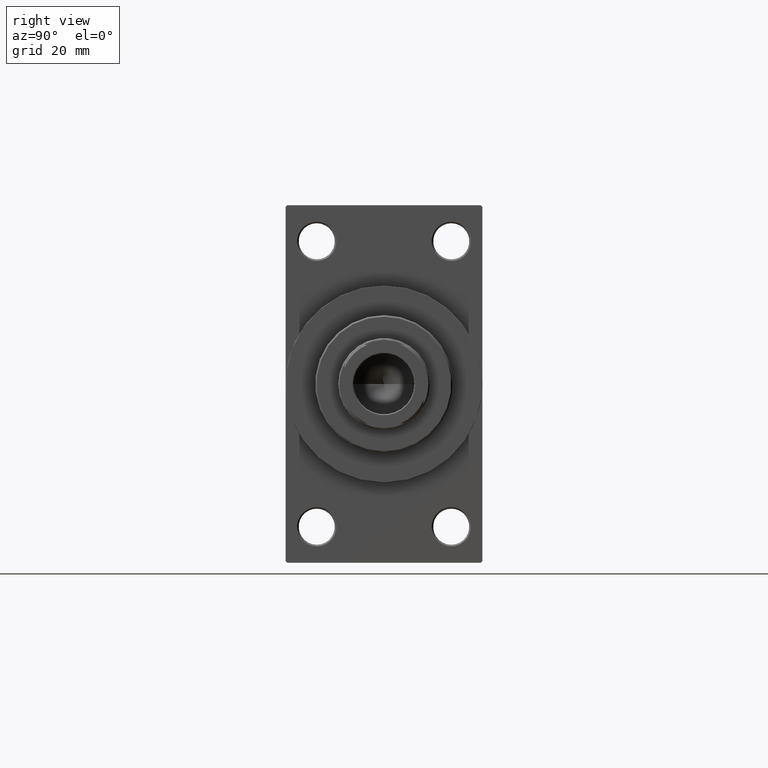
[diagram: clean part render]
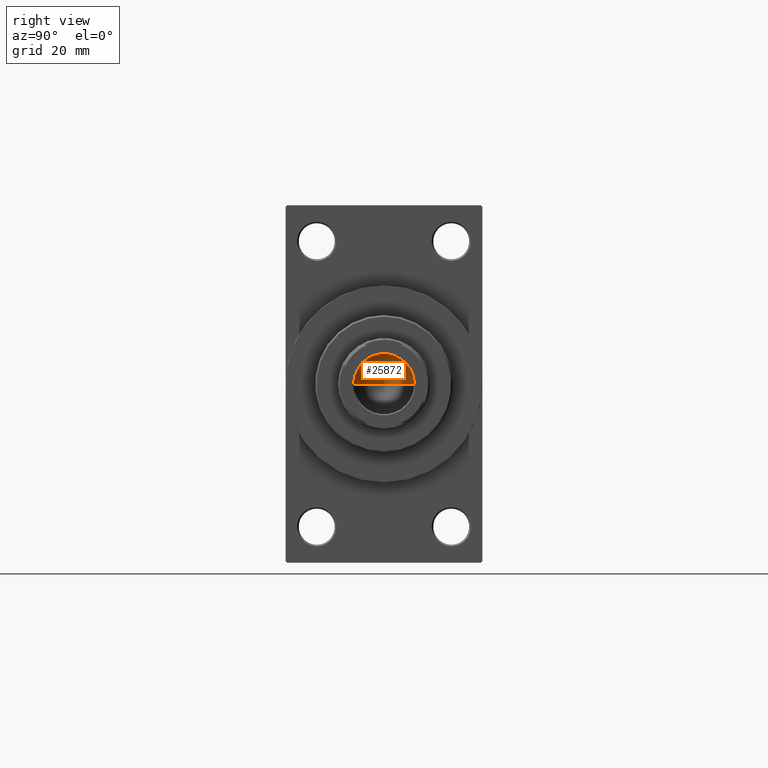
[diagram: same view with one face highlighted and labeled with its STEP entity id]
A machine part, right view. The second image highlights one B-rep face of the part: STEP entity #25872.
In plain terms, the highlighted conical surface has half-angle 59 deg.
Its self-contained STEP definition (entity closure, byte-faithful):
#1788 = CARTESIAN_POINT ( 'NONE',  ( 0.000000000000000000, 0.000000000000000000, 101.0000000000000000 ) ) ;
#4532 = CARTESIAN_POINT ( 'NONE',  ( 0.000000000000000000, 0.000000000000000000, 101.0000000000000000 ) ) ;
#5836 = FACE_OUTER_BOUND ( 'NONE', #8510, .T. ) ;
#8510 = EDGE_LOOP ( 'NONE', ( #27281, #38258, #32204 ) ) ;
#9972 = AXIS2_PLACEMENT_3D ( 'NONE', #1788, #45997, #23803 ) ;
#15679 = VERTEX_POINT ( 'NONE', #46592 ) ;
#16854 = LINE ( 'NONE', #20914, #29239 ) ;
#17389 = LINE ( 'NONE', #28618, #42787 ) ;
#20702 = CONICAL_SURFACE ( 'NONE', #9972, 9.249999999999992895, 1.029744258676653423 ) ;
#20914 = CARTESIAN_POINT ( 'NONE',  ( -9.249999999999992895, 1.132798289211300712E-15, 101.0000000000000000 ) ) ;
#23341 = VERTEX_POINT ( 'NONE', #26153 ) ;
#23803 = DIRECTION ( 'NONE',  ( 1.000000000000000000, 0.000000000000000000, 0.000000000000000000 ) ) ;
#25570 = EDGE_CURVE ( 'NONE', #15679, #23341, #17389, .T. ) ;
#25872 = ADVANCED_FACE ( 'NONE', ( #5836 ), #20702, .F. ) ;
#26153 = CARTESIAN_POINT ( 'NONE',  ( 9.249999999999992895, 0.000000000000000000, 101.0000000000000000 ) ) ;
#27281 = ORIENTED_EDGE ( 'NONE', *, *, #25570, .F. ) ;
#28618 = CARTESIAN_POINT ( 'NONE',  ( 9.249999999999992895, 0.000000000000000000, 101.0000000000000000 ) ) ;
#29239 = VECTOR ( 'NONE', #39076, 1000.000000000000000 ) ;
#32204 = ORIENTED_EDGE ( 'NONE', *, *, #32949, .T. ) ;
#32949 = EDGE_CURVE ( 'NONE', #34046, #23341, #36064, .T. ) ;
#34046 = VERTEX_POINT ( 'NONE', #44396 ) ;
#34503 = EDGE_CURVE ( 'NONE', #15679, #34046, #16854, .T. ) ;
#36064 = CIRCLE ( 'NONE', #36814, 9.249999999999992895 ) ;
#36814 = AXIS2_PLACEMENT_3D ( 'NONE', #4532, #37756, #40642 ) ;
#37756 = DIRECTION ( 'NONE',  ( -0.000000000000000000, -0.000000000000000000, 1.000000000000000000 ) ) ;
#38258 = ORIENTED_EDGE ( 'NONE', *, *, #34503, .T. ) ;
#39076 = DIRECTION ( 'NONE',  ( -0.8571673007021117785, 1.049727191138617956E-16, 0.5150380749100550437 ) ) ;
#39368 = DIRECTION ( 'NONE',  ( 0.8571673007021117785, 0.000000000000000000, 0.5150380749100550437 ) ) ;
#40642 = DIRECTION ( 'NONE',  ( 1.000000000000000000, 0.000000000000000000, 0.000000000000000000 ) ) ;
#42787 = VECTOR ( 'NONE', #39368, 1000.000000000000000 ) ;
#44396 = CARTESIAN_POINT ( 'NONE',  ( -9.249999999999992895, 1.132798289211300712E-15, 101.0000000000000000 ) ) ;
#45997 = DIRECTION ( 'NONE',  ( -0.000000000000000000, -0.000000000000000000, 1.000000000000000000 ) ) ;
#46592 = CARTESIAN_POINT ( 'NONE',  ( -9.769621978240258809E-15, 0.000000000000000000, 95.44203927399506426 ) ) ;